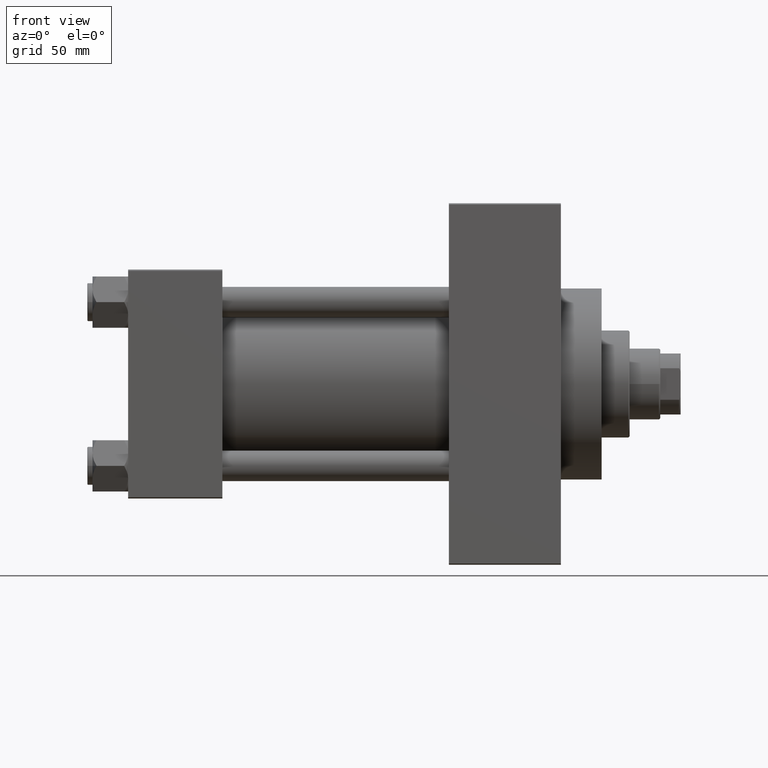
[diagram: clean part render]
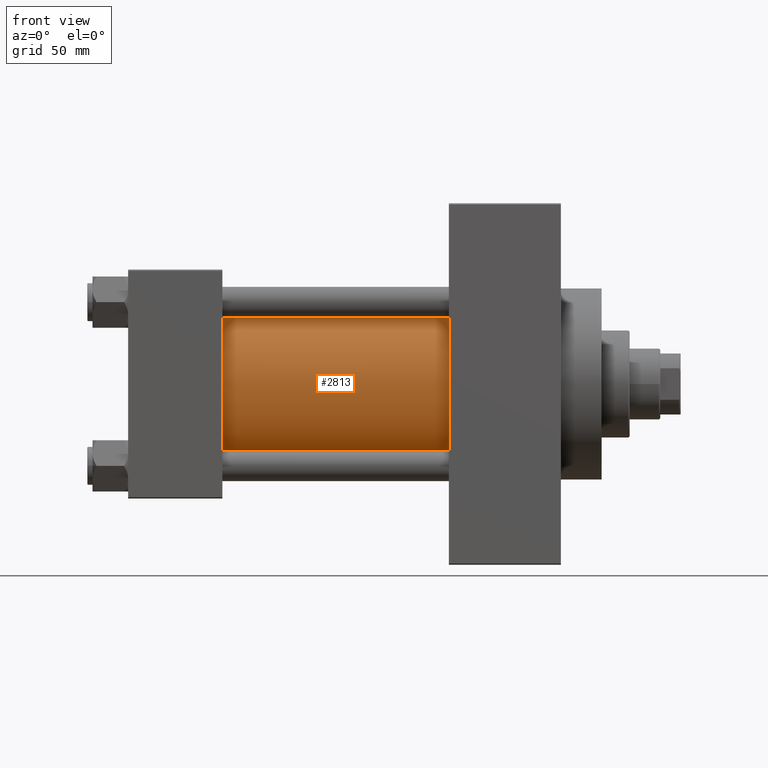
[diagram: same view with one face highlighted and labeled with its STEP entity id]
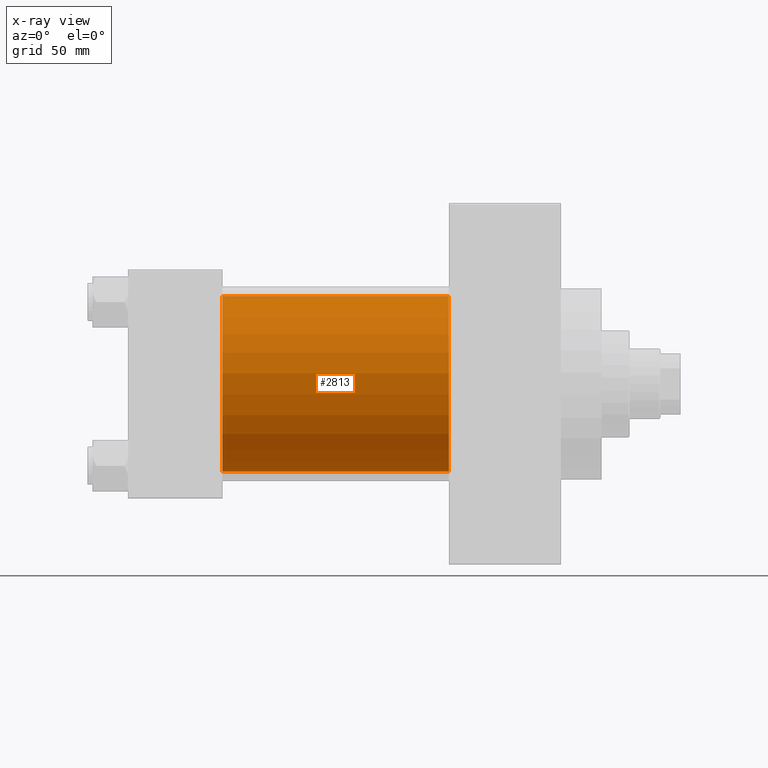
[diagram: x-ray of the same camera — body ghosted, the highlighted face saturated]
A machine part, front view. The second image highlights one B-rep face of the part: STEP entity #2813.
The next image is the same camera in x-ray: the body ghosted, the highlighted face saturated — about 2% of this face is hidden behind the body in this view.
In plain terms, the highlighted cylindrical surface (partial cylindrical patch) has radius 34.5 mm, axis along (-1, -0, -0).
Its self-contained STEP definition (entity closure, byte-faithful):
#721 = CARTESIAN_POINT ( 'NONE',  ( 37.00000000000000711, -2.602085213965210642E-15, 0.000000000000000000 ) ) ;
#2813 = ADVANCED_FACE ( 'NONE', ( #19297 ), #22667, .T. ) ;
#2918 = CARTESIAN_POINT ( 'NONE',  ( 126.0000000000000000, 1.622946243093158675E-15, -34.50000000000000000 ) ) ;
#5761 = CARTESIAN_POINT ( 'NONE',  ( 126.0000000000000000, -2.602085213965210642E-15, 34.50000000000000000 ) ) ;
#5778 = DIRECTION ( 'NONE',  ( 1.000000000000000000, 0.000000000000000000, 0.000000000000000000 ) ) ;
#5930 = AXIS2_PLACEMENT_3D ( 'NONE', #38654, #5778, #33872 ) ;
#7066 = ORIENTED_EDGE ( 'NONE', *, *, #15078, .T. ) ;
#8239 = CARTESIAN_POINT ( 'NONE',  ( 126.0000000000000000, -2.602085213965210642E-15, 0.000000000000000000 ) ) ;
#8754 = VERTEX_POINT ( 'NONE', #17521 ) ;
#9536 = EDGE_CURVE ( 'NONE', #19457, #43574, #38072, .T. ) ;
#11971 = DIRECTION ( 'NONE',  ( 0.000000000000000000, 0.000000000000000000, 1.000000000000000000 ) ) ;
#12314 = DIRECTION ( 'NONE',  ( -1.000000000000000000, -0.000000000000000000, -0.000000000000000000 ) ) ;
#12797 = LINE ( 'NONE', #27441, #34435 ) ;
#14601 = EDGE_CURVE ( 'NONE', #43574, #8754, #22098, .T. ) ;
#14656 = DIRECTION ( 'NONE',  ( -1.000000000000000000, -0.000000000000000000, -0.000000000000000000 ) ) ;
#14671 = CARTESIAN_POINT ( 'NONE',  ( 37.00000000000000711, -2.602085213965210642E-15, 34.50000000000000000 ) ) ;
#15078 = EDGE_CURVE ( 'NONE', #19457, #20897, #12797, .T. ) ;
#16081 = ORIENTED_EDGE ( 'NONE', *, *, #14601, .F. ) ;
#17521 = CARTESIAN_POINT ( 'NONE',  ( 37.00000000000000711, 1.622946243093158675E-15, -34.50000000000000000 ) ) ;
#19297 = FACE_OUTER_BOUND ( 'NONE', #40709, .T. ) ;
#19457 = VERTEX_POINT ( 'NONE', #5761 ) ;
#20034 = CARTESIAN_POINT ( 'NONE',  ( 126.0000000000000000, 1.622946243093158675E-15, -34.50000000000000000 ) ) ;
#20897 = VERTEX_POINT ( 'NONE', #14671 ) ;
#22098 = LINE ( 'NONE', #2918, #42832 ) ;
#22667 = CYLINDRICAL_SURFACE ( 'NONE', #36915, 34.50000000000000000 ) ;
#25956 = EDGE_CURVE ( 'NONE', #20897, #8754, #40006, .T. ) ;
#27200 = DIRECTION ( 'NONE',  ( 0.000000000000000000, 0.000000000000000000, 1.000000000000000000 ) ) ;
#27441 = CARTESIAN_POINT ( 'NONE',  ( 126.0000000000000000, -2.602085213965210642E-15, 34.50000000000000000 ) ) ;
#29971 = DIRECTION ( 'NONE',  ( 1.000000000000000000, -0.000000000000000000, 0.000000000000000000 ) ) ;
#33872 = DIRECTION ( 'NONE',  ( 0.000000000000000000, 0.000000000000000000, -1.000000000000000000 ) ) ;
#34435 = VECTOR ( 'NONE', #42044, 1000.000000000000000 ) ;
#36605 = ORIENTED_EDGE ( 'NONE', *, *, #9536, .F. ) ;
#36915 = AXIS2_PLACEMENT_3D ( 'NONE', #8239, #12314, #27200 ) ;
#36973 = AXIS2_PLACEMENT_3D ( 'NONE', #721, #29971, #11971 ) ;
#38072 = CIRCLE ( 'NONE', #5930, 34.50000000000000000 ) ;
#38654 = CARTESIAN_POINT ( 'NONE',  ( 126.0000000000000000, -2.602085213965210642E-15, 0.000000000000000000 ) ) ;
#40006 = CIRCLE ( 'NONE', #36973, 34.50000000000000000 ) ;
#40709 = EDGE_LOOP ( 'NONE', ( #16081, #36605, #7066, #43224 ) ) ;
#42044 = DIRECTION ( 'NONE',  ( -1.000000000000000000, -0.000000000000000000, -0.000000000000000000 ) ) ;
#42832 = VECTOR ( 'NONE', #14656, 1000.000000000000000 ) ;
#43224 = ORIENTED_EDGE ( 'NONE', *, *, #25956, .T. ) ;
#43574 = VERTEX_POINT ( 'NONE', #20034 ) ;